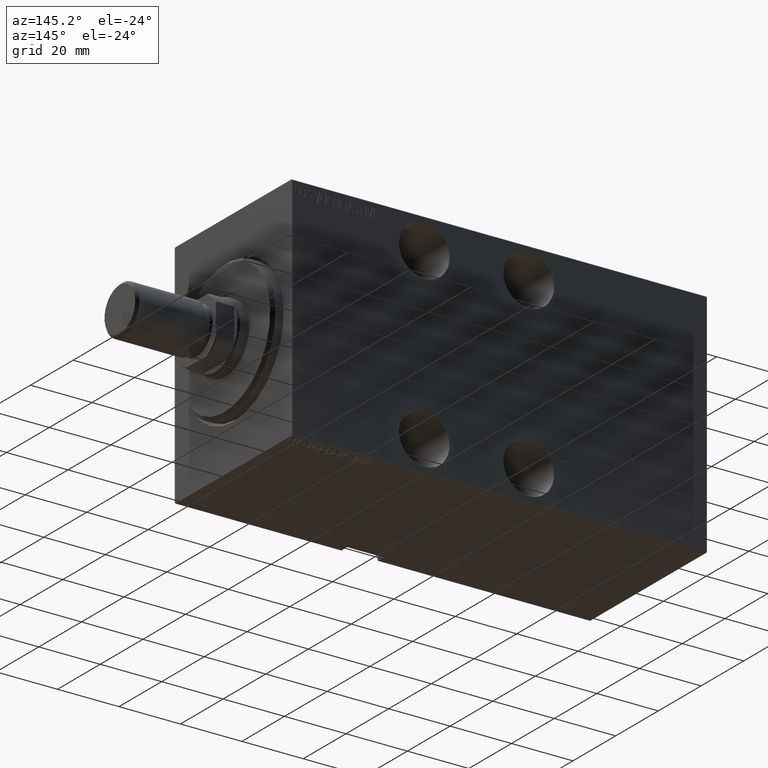
[diagram: clean part render]
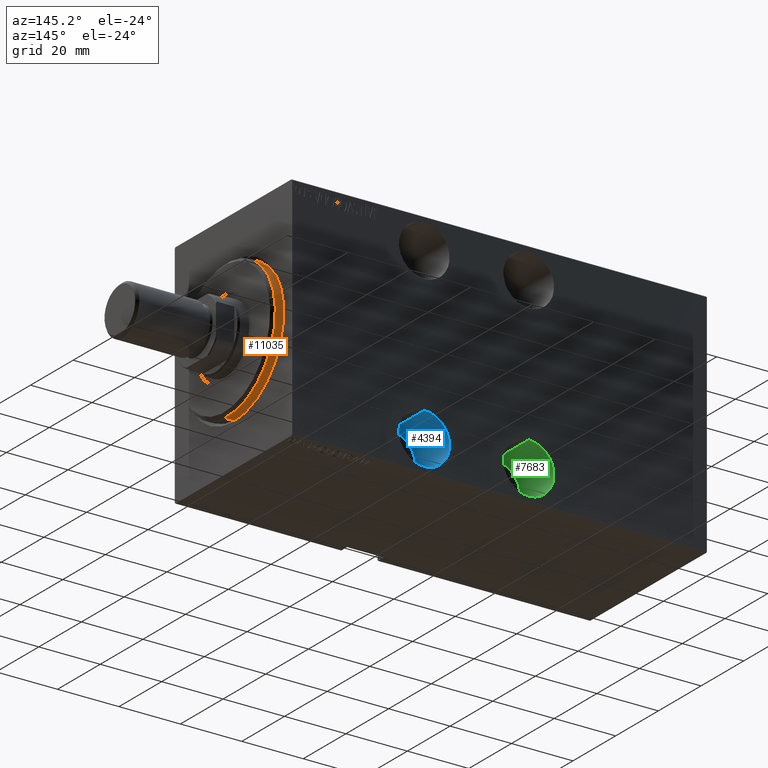
[diagram: same view with three faces highlighted in distinct colors, each labeled with its STEP entity id]
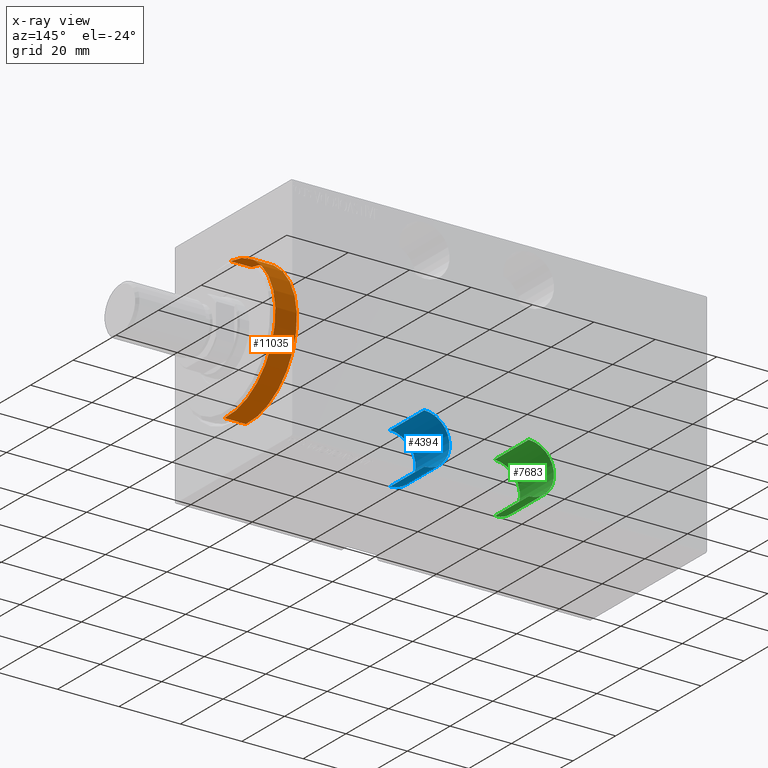
[diagram: x-ray of the same camera — body ghosted, the three highlighted faces saturated]
A machine part, auxiliary view with three faces highlighted in distinct colors.
The next image is the same camera in x-ray (body ghosted, the three faces saturated) — at least one of them is partly hidden behind the body in this view.
Their STEP definitions:

[orange] entity #11035 — the highlighted cylindrical surface (partial cylindrical patch) has radius 22.5 mm, axis along (-1, 0, 0).
#4028 = FACE_OUTER_BOUND ( 'NONE', #36768, .T. ) ;
#4903 = CARTESIAN_POINT ( 'NONE',  ( -5.000000000000000000, 0.000000000000000000, 0.000000000000000000 ) ) ;
#5131 = DIRECTION ( 'NONE',  ( 0.000000000000000000, 0.000000000000000000, 1.000000000000000000 ) ) ;
#5337 = VERTEX_POINT ( 'NONE', #24295 ) ;
#6787 = DIRECTION ( 'NONE',  ( 0.000000000000000000, 0.000000000000000000, -1.000000000000000000 ) ) ;
#6798 = EDGE_CURVE ( 'NONE', #8190, #42109, #30235, .T. ) ;
#7363 = LINE ( 'NONE', #11581, #42997 ) ;
#7845 = CARTESIAN_POINT ( 'NONE',  ( -5.000000000000000000, 0.000000000000000000, 22.50000000000000355 ) ) ;
#8190 = VERTEX_POINT ( 'NONE', #27493 ) ;
#10527 = CARTESIAN_POINT ( 'NONE',  ( 3.000000000000000000, 0.000000000000000000, 0.000000000000000000 ) ) ;
#10968 = DIRECTION ( 'NONE',  ( 0.000000000000000000, 0.000000000000000000, 1.000000000000000000 ) ) ;
#11035 = ADVANCED_FACE ( 'NONE', ( #4028 ), #17886, .T. ) ;
#11581 = CARTESIAN_POINT ( 'NONE',  ( 3.000000000000000000, 0.000000000000000000, 22.50000000000000355 ) ) ;
#15563 = CIRCLE ( 'NONE', #29818, 22.50000000000000355 ) ;
#15852 = EDGE_CURVE ( 'NONE', #43379, #42109, #30922, .T. ) ;
#16617 = CARTESIAN_POINT ( 'NONE',  ( 1.999999999999999112, 0.000000000000000000, 0.000000000000000000 ) ) ;
#17886 = CYLINDRICAL_SURFACE ( 'NONE', #21518, 22.50000000000000355 ) ;
#19440 = DIRECTION ( 'NONE',  ( -1.000000000000000000, 0.000000000000000000, 0.000000000000000000 ) ) ;
#21518 = AXIS2_PLACEMENT_3D ( 'NONE', #10527, #30624, #10968 ) ;
#21636 = AXIS2_PLACEMENT_3D ( 'NONE', #4903, #19440, #5131 ) ;
#23104 = DIRECTION ( 'NONE',  ( -1.000000000000000000, 0.000000000000000000, 0.000000000000000000 ) ) ;
#24295 = CARTESIAN_POINT ( 'NONE',  ( 1.999999999999999112, 0.000000000000000000, 22.50000000000000355 ) ) ;
#24474 = ORIENTED_EDGE ( 'NONE', *, *, #15852, .F. ) ;
#26653 = CARTESIAN_POINT ( 'NONE',  ( 3.000000000000000000, 2.755455298081545172E-15, -22.50000000000000355 ) ) ;
#27137 = EDGE_CURVE ( 'NONE', #5337, #8190, #15563, .T. ) ;
#27493 = CARTESIAN_POINT ( 'NONE',  ( 1.999999999999999112, 2.755455298081545172E-15, -22.50000000000000355 ) ) ;
#29818 = AXIS2_PLACEMENT_3D ( 'NONE', #16617, #23104, #6787 ) ;
#30235 = LINE ( 'NONE', #26653, #31457 ) ;
#30624 = DIRECTION ( 'NONE',  ( -1.000000000000000000, -0.000000000000000000, -0.000000000000000000 ) ) ;
#30922 = CIRCLE ( 'NONE', #21636, 22.50000000000000355 ) ;
#31457 = VECTOR ( 'NONE', #39629, 1000.000000000000000 ) ;
#35477 = DIRECTION ( 'NONE',  ( -1.000000000000000000, -0.000000000000000000, -0.000000000000000000 ) ) ;
#36768 = EDGE_LOOP ( 'NONE', ( #38768, #41684, #24474, #39087 ) ) ;
#38768 = ORIENTED_EDGE ( 'NONE', *, *, #27137, .T. ) ;
#39087 = ORIENTED_EDGE ( 'NONE', *, *, #42786, .F. ) ;
#39629 = DIRECTION ( 'NONE',  ( -1.000000000000000000, -0.000000000000000000, -0.000000000000000000 ) ) ;
#41684 = ORIENTED_EDGE ( 'NONE', *, *, #6798, .T. ) ;
#42109 = VERTEX_POINT ( 'NONE', #43016 ) ;
#42786 = EDGE_CURVE ( 'NONE', #5337, #43379, #7363, .T. ) ;
#42997 = VECTOR ( 'NONE', #35477, 1000.000000000000000 ) ;
#43016 = CARTESIAN_POINT ( 'NONE',  ( -5.000000000000000000, 2.755455298081545172E-15, -22.50000000000000355 ) ) ;
#43379 = VERTEX_POINT ( 'NONE', #7845 ) ;

[blue] entity #4394 — the highlighted cylindrical surface (edge-blend (fillet) strip) has radius 8.25 mm, axis along (-0, 1, 0).
#672 = AXIS2_PLACEMENT_3D ( 'NONE', #39865, #2755, #5673 ) ;
#1495 = AXIS2_PLACEMENT_3D ( 'NONE', #2736, #22644, #16381 ) ;
#2093 = CARTESIAN_POINT ( 'NONE',  ( 43.00000000000000000, -27.49999999999999645, -35.74999999999999289 ) ) ;
#2274 = EDGE_CURVE ( 'NONE', #33254, #19811, #19949, .T. ) ;
#2736 = CARTESIAN_POINT ( 'NONE',  ( 43.00000000000000000, -11.49999999999999645, -27.49999999999999645 ) ) ;
#2755 = DIRECTION ( 'NONE',  ( 0.000000000000000000, -1.000000000000000000, 0.000000000000000000 ) ) ;
#4394 = ADVANCED_FACE ( 'NONE', ( #36139 ), #12238, .F. ) ;
#4452 = EDGE_CURVE ( 'NONE', #25069, #19811, #6645, .T. ) ;
#5446 = VECTOR ( 'NONE', #39455, 1000.000000000000000 ) ;
#5673 = DIRECTION ( 'NONE',  ( 0.000000000000000000, 0.000000000000000000, -1.000000000000000000 ) ) ;
#6645 = LINE ( 'NONE', #7682, #21454 ) ;
#6886 = EDGE_CURVE ( 'NONE', #20378, #25069, #41490, .T. ) ;
#7682 = CARTESIAN_POINT ( 'NONE',  ( 43.00000000000000000, -11.49999999999999645, -19.25000000000000000 ) ) ;
#11456 = AXIS2_PLACEMENT_3D ( 'NONE', #23182, #33444, #25866 ) ;
#11529 = CARTESIAN_POINT ( 'NONE',  ( 43.00000000000000000, -11.49999999999999645, -35.74999999999999289 ) ) ;
#12238 = CYLINDRICAL_SURFACE ( 'NONE', #11456, 8.249999999999992895 ) ;
#13707 = ORIENTED_EDGE ( 'NONE', *, *, #4452, .F. ) ;
#14544 = CARTESIAN_POINT ( 'NONE',  ( 43.00000000000000000, -11.49999999999999645, -35.74999999999999289 ) ) ;
#14742 = ORIENTED_EDGE ( 'NONE', *, *, #22921, .T. ) ;
#16381 = DIRECTION ( 'NONE',  ( 0.000000000000000000, 0.000000000000000000, -1.000000000000000000 ) ) ;
#19811 = VERTEX_POINT ( 'NONE', #40529 ) ;
#19949 = CIRCLE ( 'NONE', #672, 8.249999999999992895 ) ;
#20280 = DIRECTION ( 'NONE',  ( -0.000000000000000000, -1.000000000000000000, -0.000000000000000000 ) ) ;
#20378 = VERTEX_POINT ( 'NONE', #14544 ) ;
#21454 = VECTOR ( 'NONE', #20280, 1000.000000000000000 ) ;
#22644 = DIRECTION ( 'NONE',  ( 0.000000000000000000, -1.000000000000000000, 0.000000000000000000 ) ) ;
#22921 = EDGE_CURVE ( 'NONE', #20378, #33254, #35429, .T. ) ;
#23182 = CARTESIAN_POINT ( 'NONE',  ( 43.00000000000000000, -11.49999999999999645, -27.49999999999999645 ) ) ;
#25069 = VERTEX_POINT ( 'NONE', #37702 ) ;
#25866 = DIRECTION ( 'NONE',  ( 0.000000000000000000, 0.000000000000000000, -1.000000000000000000 ) ) ;
#30970 = ORIENTED_EDGE ( 'NONE', *, *, #6886, .F. ) ;
#33254 = VERTEX_POINT ( 'NONE', #2093 ) ;
#33444 = DIRECTION ( 'NONE',  ( -0.000000000000000000, -1.000000000000000000, -0.000000000000000000 ) ) ;
#33745 = EDGE_LOOP ( 'NONE', ( #13707, #30970, #14742, #35970 ) ) ;
#35429 = LINE ( 'NONE', #11529, #5446 ) ;
#35970 = ORIENTED_EDGE ( 'NONE', *, *, #2274, .T. ) ;
#36139 = FACE_OUTER_BOUND ( 'NONE', #33745, .T. ) ;
#37702 = CARTESIAN_POINT ( 'NONE',  ( 43.00000000000000000, -11.49999999999999645, -19.25000000000000000 ) ) ;
#39455 = DIRECTION ( 'NONE',  ( -0.000000000000000000, -1.000000000000000000, -0.000000000000000000 ) ) ;
#39865 = CARTESIAN_POINT ( 'NONE',  ( 43.00000000000000000, -27.49999999999999645, -27.49999999999999645 ) ) ;
#40529 = CARTESIAN_POINT ( 'NONE',  ( 43.00000000000000000, -27.49999999999999645, -19.25000000000000000 ) ) ;
#41490 = CIRCLE ( 'NONE', #1495, 8.249999999999992895 ) ;

[green] entity #7683 — the highlighted cylindrical surface (edge-blend (fillet) strip) has radius 8.25 mm, axis along (-0, 1, 0).
#1580 = CIRCLE ( 'NONE', #10183, 8.249999999999996447 ) ;
#2244 = VERTEX_POINT ( 'NONE', #15967 ) ;
#3457 = LINE ( 'NONE', #23586, #4428 ) ;
#4428 = VECTOR ( 'NONE', #17098, 1000.000000000000000 ) ;
#7453 = VERTEX_POINT ( 'NONE', #26545 ) ;
#7536 = CARTESIAN_POINT ( 'NONE',  ( 77.00000000000000000, -27.49999999999999645, -19.25000000000000355 ) ) ;
#7683 = ADVANCED_FACE ( 'NONE', ( #38161 ), #41514, .F. ) ;
#8001 = DIRECTION ( 'NONE',  ( 0.000000000000000000, 0.000000000000000000, -1.000000000000000000 ) ) ;
#10183 = AXIS2_PLACEMENT_3D ( 'NONE', #11350, #42624, #8001 ) ;
#11284 = ORIENTED_EDGE ( 'NONE', *, *, #13589, .T. ) ;
#11350 = CARTESIAN_POINT ( 'NONE',  ( 77.00000000000000000, -27.49999999999999645, -27.50000000000000000 ) ) ;
#13390 = CIRCLE ( 'NONE', #38382, 8.249999999999996447 ) ;
#13589 = EDGE_CURVE ( 'NONE', #2244, #7453, #3457, .T. ) ;
#15967 = CARTESIAN_POINT ( 'NONE',  ( 77.00000000000000000, -11.49999999999999645, -35.75000000000000000 ) ) ;
#16338 = EDGE_LOOP ( 'NONE', ( #21243, #22104, #11284, #34856 ) ) ;
#17098 = DIRECTION ( 'NONE',  ( -0.000000000000000000, -1.000000000000000000, -0.000000000000000000 ) ) ;
#17144 = CARTESIAN_POINT ( 'NONE',  ( 77.00000000000000000, -11.49999999999999645, -27.50000000000000000 ) ) ;
#20629 = CARTESIAN_POINT ( 'NONE',  ( 77.00000000000000000, -11.49999999999999645, -19.25000000000000355 ) ) ;
#20739 = DIRECTION ( 'NONE',  ( 0.000000000000000000, 0.000000000000000000, -1.000000000000000000 ) ) ;
#21243 = ORIENTED_EDGE ( 'NONE', *, *, #31688, .F. ) ;
#22104 = ORIENTED_EDGE ( 'NONE', *, *, #25088, .F. ) ;
#23586 = CARTESIAN_POINT ( 'NONE',  ( 77.00000000000000000, -11.49999999999999645, -35.75000000000000000 ) ) ;
#25088 = EDGE_CURVE ( 'NONE', #2244, #40067, #13390, .T. ) ;
#26545 = CARTESIAN_POINT ( 'NONE',  ( 77.00000000000000000, -27.49999999999999645, -35.75000000000000000 ) ) ;
#27343 = LINE ( 'NONE', #40984, #39240 ) ;
#31442 = CARTESIAN_POINT ( 'NONE',  ( 77.00000000000000000, -11.49999999999999645, -27.50000000000000000 ) ) ;
#31688 = EDGE_CURVE ( 'NONE', #40067, #36485, #27343, .T. ) ;
#34797 = DIRECTION ( 'NONE',  ( 0.000000000000000000, 0.000000000000000000, -1.000000000000000000 ) ) ;
#34856 = ORIENTED_EDGE ( 'NONE', *, *, #43649, .T. ) ;
#34919 = DIRECTION ( 'NONE',  ( -0.000000000000000000, -1.000000000000000000, -0.000000000000000000 ) ) ;
#36485 = VERTEX_POINT ( 'NONE', #7536 ) ;
#38161 = FACE_OUTER_BOUND ( 'NONE', #16338, .T. ) ;
#38382 = AXIS2_PLACEMENT_3D ( 'NONE', #17144, #41062, #20739 ) ;
#38811 = DIRECTION ( 'NONE',  ( -0.000000000000000000, -1.000000000000000000, -0.000000000000000000 ) ) ;
#39240 = VECTOR ( 'NONE', #34919, 1000.000000000000000 ) ;
#40042 = AXIS2_PLACEMENT_3D ( 'NONE', #31442, #38811, #34797 ) ;
#40067 = VERTEX_POINT ( 'NONE', #20629 ) ;
#40984 = CARTESIAN_POINT ( 'NONE',  ( 77.00000000000000000, -11.49999999999999645, -19.25000000000000355 ) ) ;
#41062 = DIRECTION ( 'NONE',  ( 0.000000000000000000, -1.000000000000000000, 0.000000000000000000 ) ) ;
#41514 = CYLINDRICAL_SURFACE ( 'NONE', #40042, 8.249999999999996447 ) ;
#42624 = DIRECTION ( 'NONE',  ( 0.000000000000000000, -1.000000000000000000, 0.000000000000000000 ) ) ;
#43649 = EDGE_CURVE ( 'NONE', #7453, #36485, #1580, .T. ) ;